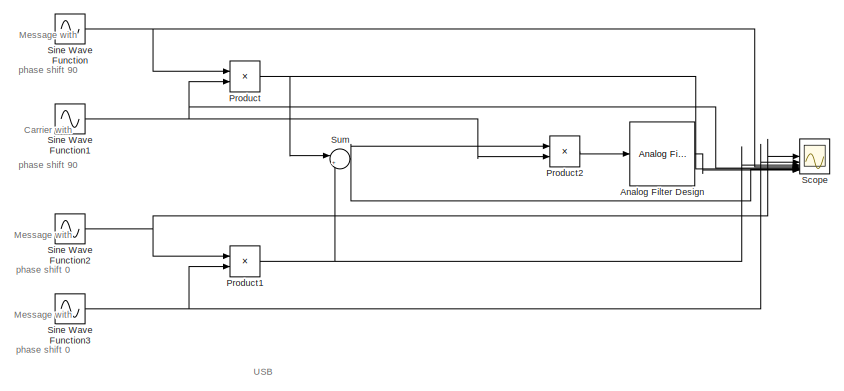
[diagram: root canvas - part 1/2, left side, full height]
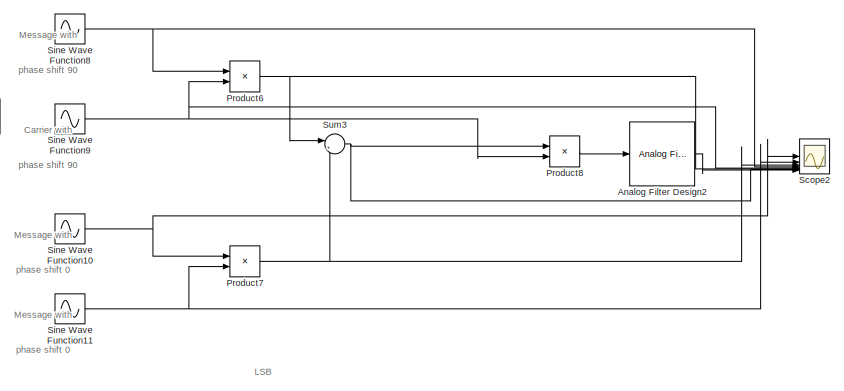
[diagram: root canvas - part 2/2, right side, full height]
MODEL slx_96b8d0f04594
KIND model
CONFIG AbsTol = auto
CONFIG EnableMultiTasking = off
CONFIG FixedStep = auto
CONFIG MaxStep = auto
CONFIG MinStep = auto
CONFIG RelTol = 1e-3
CONFIG SampleTimeConstraint = Unconstrained
CONFIG SolverName = VariableStepAuto
CONFIG StartTime = 0.0
CONFIG StopTime = 1
BLOCK [Reference] Analog Filter Design  REF=dspfdesign/Analog
Filter Design
  SourceBlock = dspfdesign/Analog\nFilter Design
  SourceType = Analog Filter Design
BLOCK [Reference] Analog Filter Design2  REF=dspfdesign/Analog
Filter Design
  SourceBlock = dspfdesign/Analog\nFilter Design
  SourceType = Analog Filter Design
BLOCK [Product] Product
BLOCK [Product] Product1
BLOCK [Product] Product2
BLOCK [Product] Product6
BLOCK [Product] Product7
BLOCK [Product] Product8
BLOCK [Scope] Scope
  Floating = off
  NumInputPorts = 8
  ScopeSpecificationString = Simulink.scopes.TimeScopeBlockCfg('CurrentConfiguration', extmgr.ConfigurationSet(extmgr.Configuration('Core','General UI',true,'FigureColor',[1 1 1]),extmgr.Configuration('Core','Source UI',true),extmgr.Configuration('Sources','WiredSimulink',true),extmgr.Configuration('Visuals','Time Domain',true,'SerializedDisplays',{struct('MinYLimReal','-1.25','MaxYLimReal','1.25','YLabelReal','','MinYLimMag'...<+7504ch>
BLOCK [Scope] Scope2
  Floating = off
  NumInputPorts = 8
  ScopeSpecificationString = Simulink.scopes.TimeScopeBlockCfg('CurrentConfiguration', extmgr.ConfigurationSet(extmgr.Configuration('Core','General UI',true,'FigureColor',[1 1 1]),extmgr.Configuration('Core','Source UI',true),extmgr.Configuration('Sources','WiredSimulink',true,'DataLoggingVariableName','ScopeData1'),extmgr.Configuration('Visuals','Time Domain',true,'SerializedDisplays',{struct('MinYLimReal','-1.25','MaxYLimRe...<+7543ch>
BLOCK [Sin] Sine Wave Function
  Frequency = 2*pi*10
  Phase = pi/2
  SampleTime = 1/10000
BLOCK [Sin] Sine Wave Function1
  Frequency = 2*pi*100
  Phase = pi/2
  SampleTime = 1/10000
BLOCK [Sin] Sine Wave Function10
  Frequency = 2*pi*10
  SampleTime = 1/10000
BLOCK [Sin] Sine Wave Function11
  Frequency = 2*pi*100
  SampleTime = 1/10000
BLOCK [Sin] Sine Wave Function2
  Frequency = 2*pi*10
  SampleTime = 1/10000
BLOCK [Sin] Sine Wave Function3
  Frequency = 2*pi*100
  SampleTime = 1/10000
BLOCK [Sin] Sine Wave Function8
  Frequency = 2*pi*10
  Phase = pi/2
  SampleTime = 1/10000
BLOCK [Sin] Sine Wave Function9
  Frequency = 2*pi*100
  Phase = pi/2
  SampleTime = 1/10000
BLOCK [Sum] Sum
  Inputs = |++
BLOCK [Sum] Sum3
  Inputs = |+-
ANNOTATION (root): LSB
ANNOTATION (root): USB
ANNOTATION (root): Carrier with phase shift 90
ANNOTATION (root): Message with phase shift 0
ANNOTATION (root): Message with phase shift 90
LINE Analog Filter Design2:1 -> Scope2:8
LINE Analog Filter Design:1 -> Scope:8
NET Product1:1 -> Scope:3, Sum:2
LINE Product2:1 -> Analog Filter Design:1
NET Product6:1 -> Scope2:6, Sum3:1
NET Product7:1 -> Scope2:3, Sum3:2
LINE Product8:1 -> Analog Filter Design2:1
NET Product:1 -> Scope:6, Sum:1
NET Sine Wave Function10:1 -> Product7:1, Scope2:1
NET Sine Wave Function11:1 -> Product7:2, Scope2:2
NET Sine Wave Function1:1 -> Product2:2, Product:2, Scope:5
NET Sine Wave Function2:1 -> Product1:1, Scope:1
NET Sine Wave Function3:1 -> Product1:2, Scope:2
NET Sine Wave Function8:1 -> Product6:1, Scope2:4
NET Sine Wave Function9:1 -> Product6:2, Product8:2, Scope2:5
NET Sine Wave Function:1 -> Product:1, Scope:4
NET Sum3:1 -> Product8:1, Scope2:7
NET Sum:1 -> Product2:1, Scope:7
note: NET lines group one-source signal fan-out (src -> all destinations, sorted); 1:1 wires keep LINE
